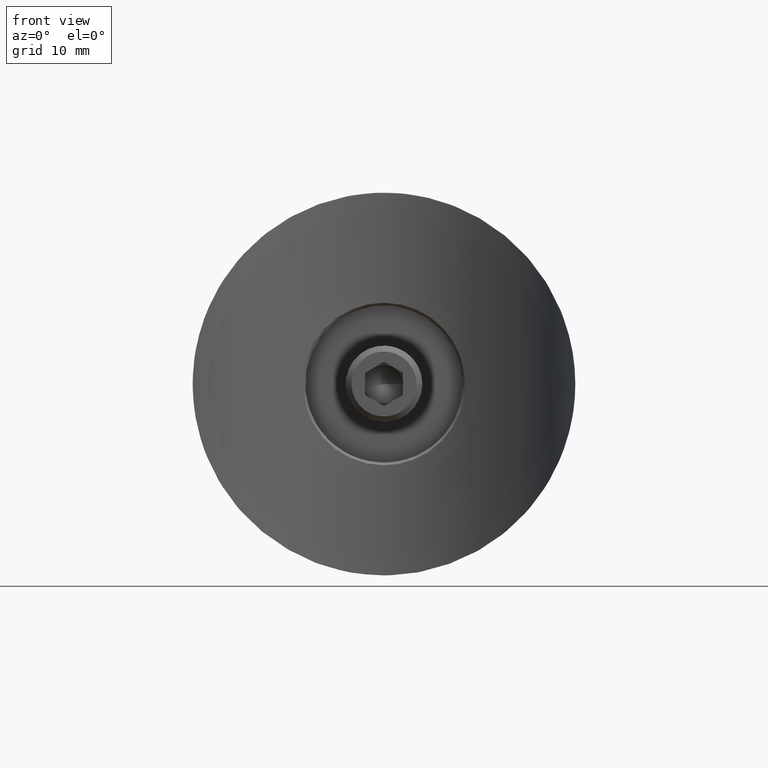
[diagram: clean part render]
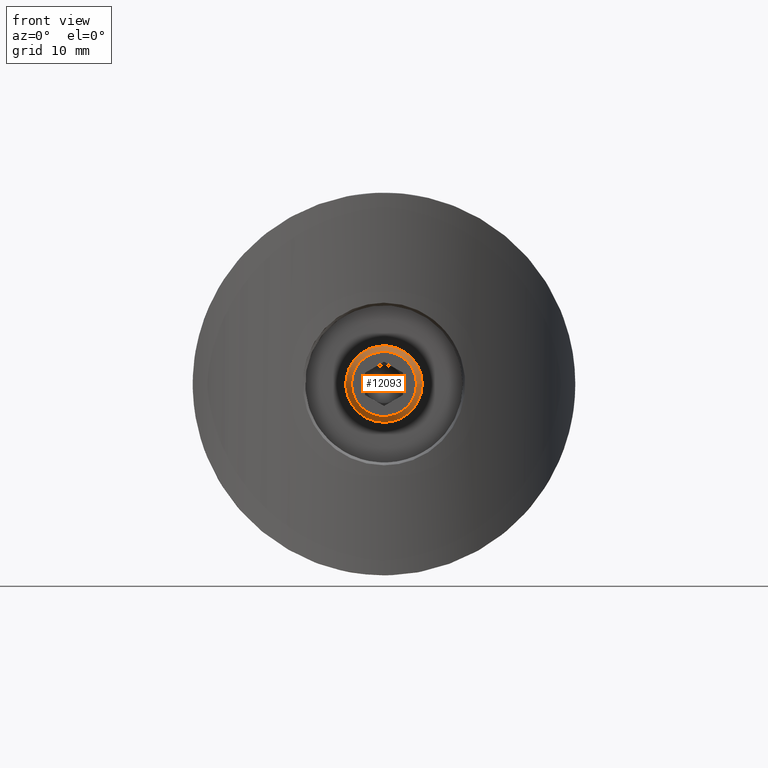
[diagram: same view with one face highlighted and labeled with its STEP entity id]
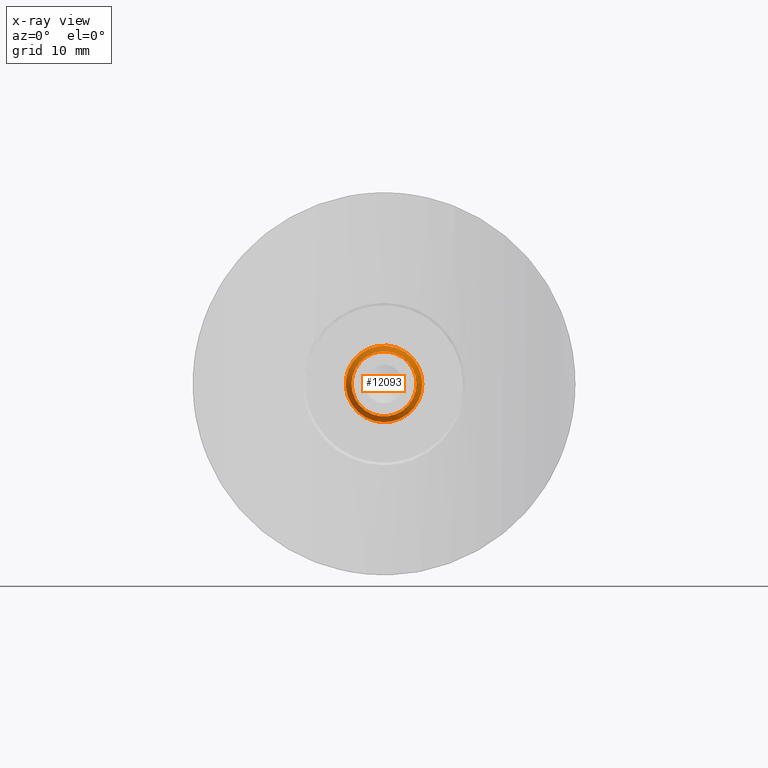
[diagram: x-ray of the same camera — body ghosted, the highlighted face saturated]
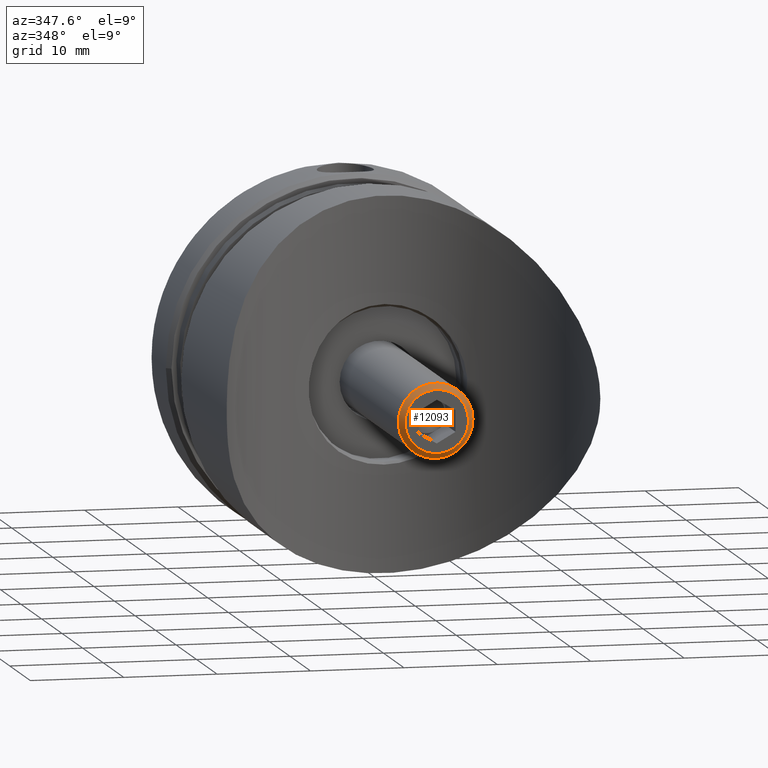
[diagram: same view with one face highlighted and labeled with its STEP entity id]
A machine part, front view. The second image highlights one B-rep face of the part: STEP entity #12093.
The next image is the same camera in x-ray: the body ghosted, the highlighted face saturated — about 0% of this face is hidden behind the body in this view.
A second angle (auxiliary view) of the same face is appended — the face is thin or edge-on in the first view.
In plain terms, the highlighted conical surface has half-angle 45 deg.
Its self-contained STEP definition (entity closure, byte-faithful):
#808 = DIRECTION ( 'NONE',  ( 0.000000000000000000, 0.000000000000000000, 1.000000000000000000 ) ) ;
#924 = DIRECTION ( 'NONE',  ( 0.000000000000000000, 0.000000000000000000, -1.000000000000000000 ) ) ;
#1721 = CARTESIAN_POINT ( 'NONE',  ( 45.00000000000000000, 0.000000000000000000, -3.399999999999996358 ) ) ;
#4082 = CARTESIAN_POINT ( 'NONE',  ( 44.39999999999999147, 0.000000000000000000, -4.000000000000000000 ) ) ;
#4387 = CONICAL_SURFACE ( 'NONE', #14167, 3.399999999999996358, 0.7853981633974485010 ) ;
#4488 = EDGE_LOOP ( 'NONE', ( #14364 ) ) ;
#6004 = ORIENTED_EDGE ( 'NONE', *, *, #13476, .F. ) ;
#6397 = FACE_OUTER_BOUND ( 'NONE', #4488, .T. ) ;
#6968 = CIRCLE ( 'NONE', #13157, 3.399999999999996358 ) ;
#7073 = AXIS2_PLACEMENT_3D ( 'NONE', #12460, #11310, #14674 ) ;
#8279 = VERTEX_POINT ( 'NONE', #1721 ) ;
#9910 = VERTEX_POINT ( 'NONE', #4082 ) ;
#10083 = CIRCLE ( 'NONE', #7073, 4.000000000000000000 ) ;
#10353 = DIRECTION ( 'NONE',  ( 1.000000000000000000, 0.000000000000000000, 0.000000000000000000 ) ) ;
#10691 = EDGE_LOOP ( 'NONE', ( #6004 ) ) ;
#11310 = DIRECTION ( 'NONE',  ( -1.000000000000000000, 0.000000000000000000, 0.000000000000000000 ) ) ;
#12093 = ADVANCED_FACE ( 'NONE', ( #6397, #15241 ), #4387, .T. ) ;
#12410 = DIRECTION ( 'NONE',  ( -1.000000000000000000, 0.000000000000000000, 0.000000000000000000 ) ) ;
#12460 = CARTESIAN_POINT ( 'NONE',  ( 44.39999999999999147, 0.000000000000000000, 0.000000000000000000 ) ) ;
#13157 = AXIS2_PLACEMENT_3D ( 'NONE', #15082, #10353, #924 ) ;
#13360 = EDGE_CURVE ( 'NONE', #9910, #9910, #10083, .T. ) ;
#13476 = EDGE_CURVE ( 'NONE', #8279, #8279, #6968, .T. ) ;
#14167 = AXIS2_PLACEMENT_3D ( 'NONE', #14928, #12410, #808 ) ;
#14364 = ORIENTED_EDGE ( 'NONE', *, *, #13360, .F. ) ;
#14674 = DIRECTION ( 'NONE',  ( 0.000000000000000000, 0.000000000000000000, -1.000000000000000000 ) ) ;
#14928 = CARTESIAN_POINT ( 'NONE',  ( 45.00000000000000000, 0.000000000000000000, 0.000000000000000000 ) ) ;
#15082 = CARTESIAN_POINT ( 'NONE',  ( 45.00000000000000000, 0.000000000000000000, 0.000000000000000000 ) ) ;
#15241 = FACE_BOUND ( 'NONE', #10691, .T. ) ;